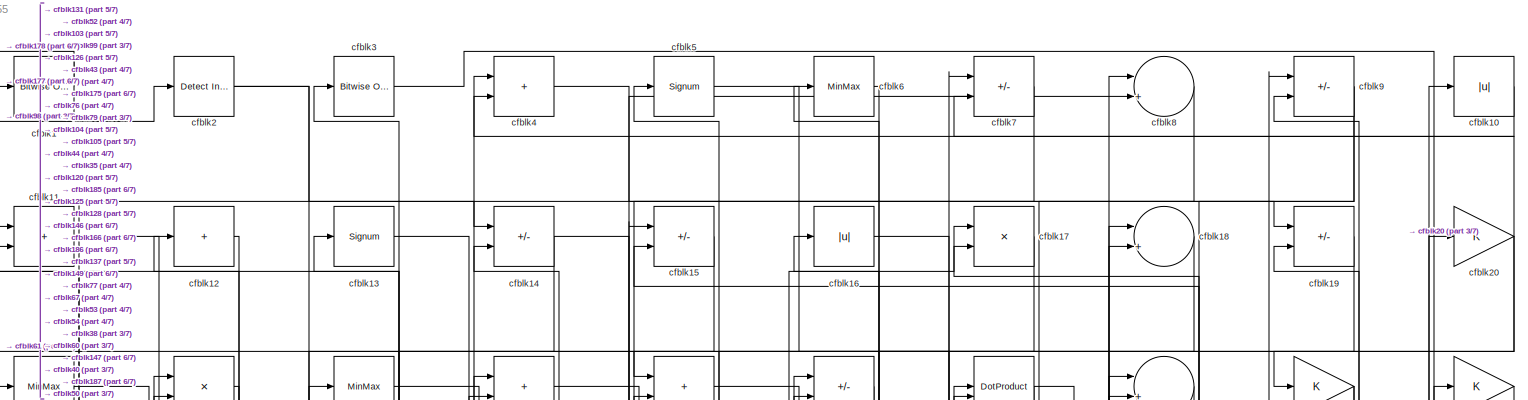
[diagram: root canvas - part 1/7, full width, top band]
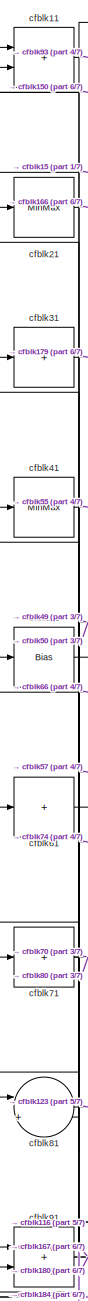
[diagram: root canvas - part 2/7, top left region]
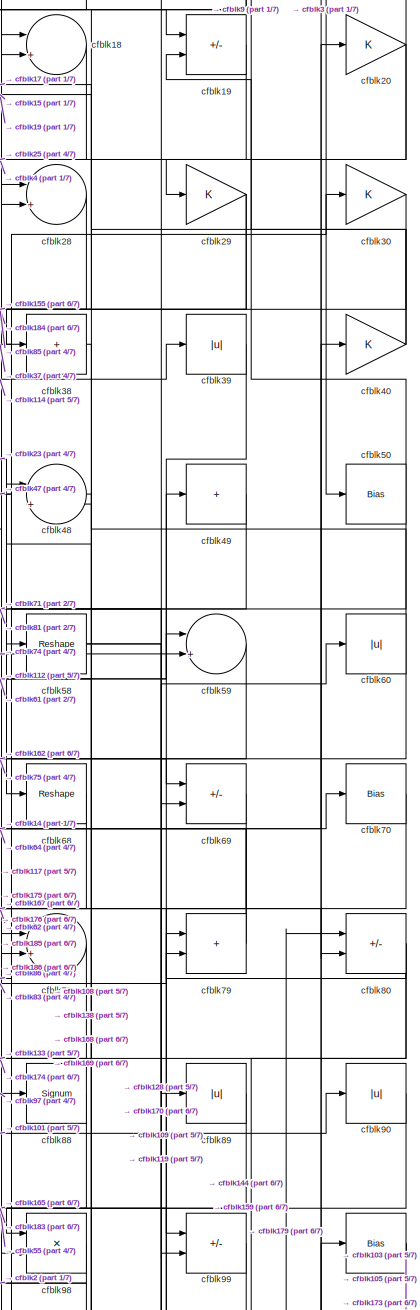
[diagram: root canvas - part 3/7, top right region]
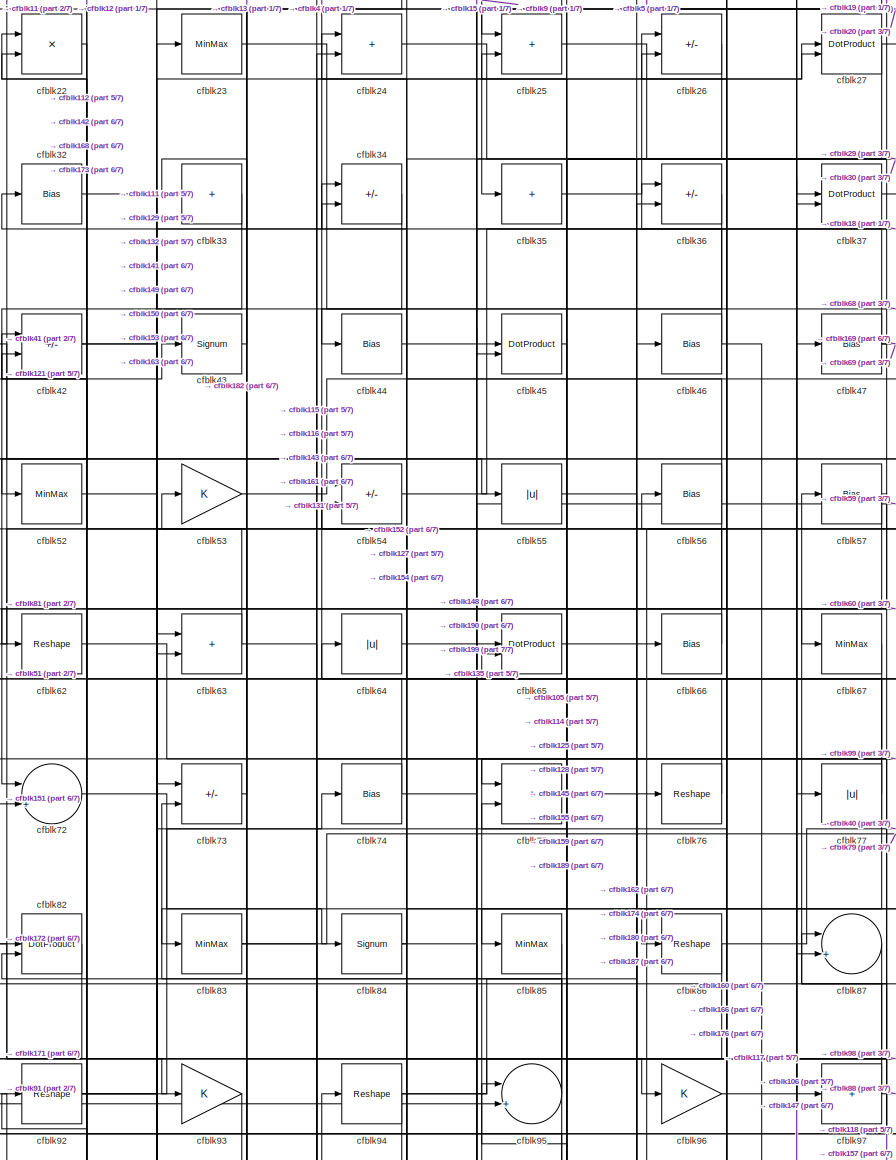
[diagram: root canvas - part 4/7, top center region]
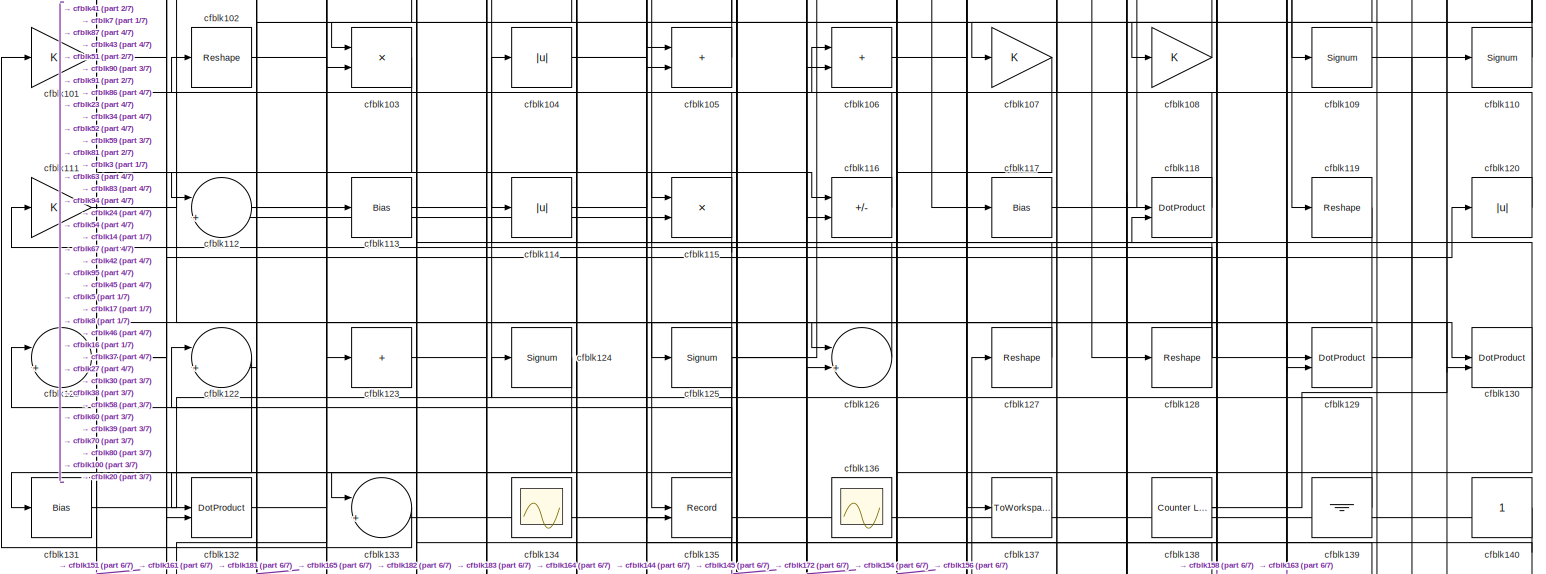
[diagram: root canvas - part 5/7, full width, middle band]
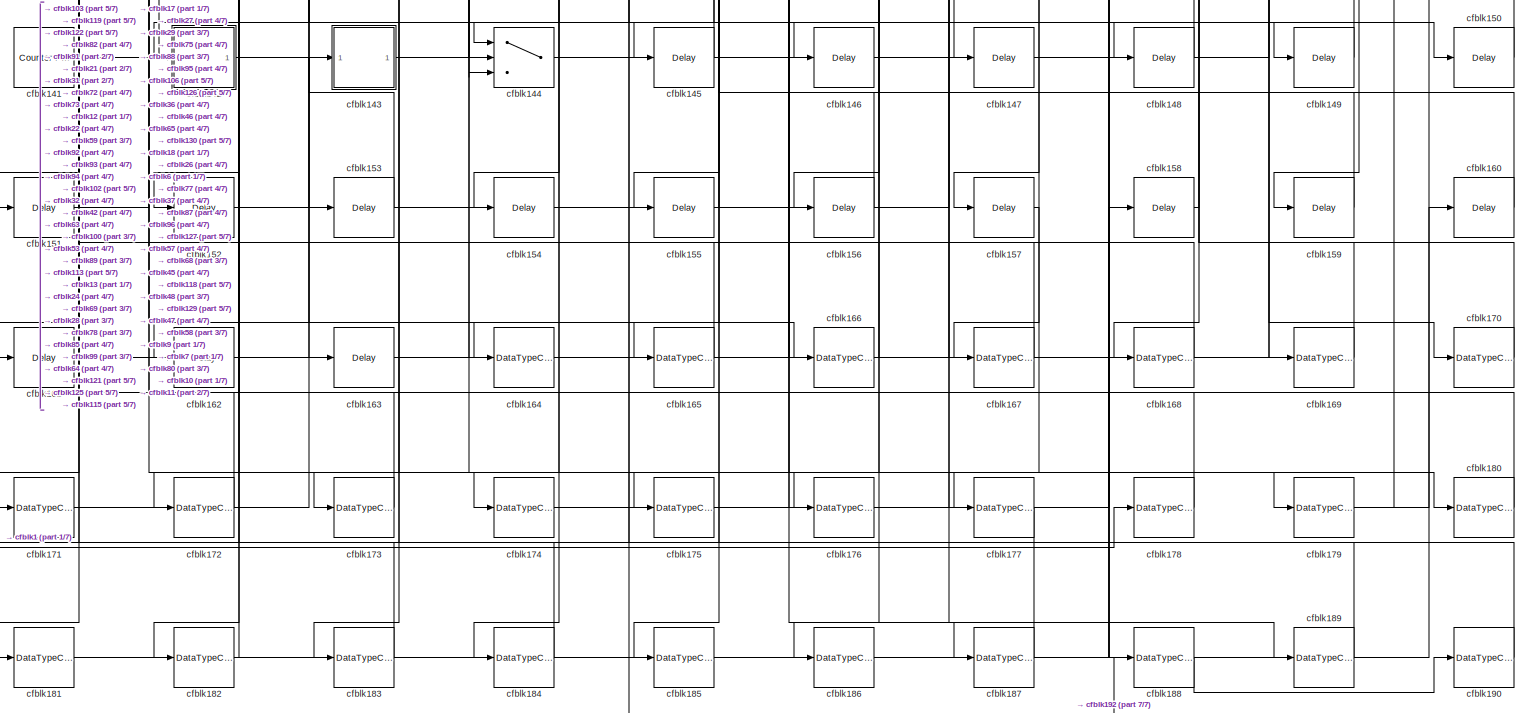
[diagram: root canvas - part 6/7, full width, bottom band]
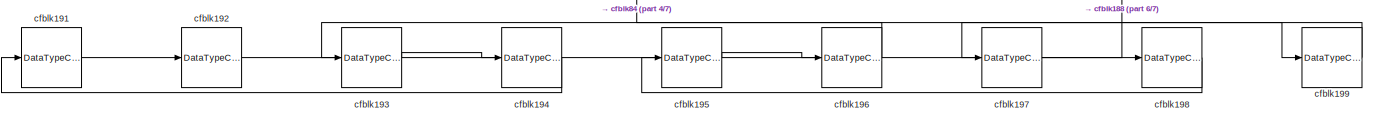
[diagram: root canvas - part 7/7, full width, bottom band]
MODEL slx_f5e3c2ff4255
KIND model
CONFIG AbsTol = auto
CONFIG EnableMultiTasking = off
CONFIG FixedStep = auto
CONFIG MaxStep = auto
CONFIG MinStep = auto
CONFIG RelTol = 1e-3
CONFIG SampleTimeConstraint = Unconstrained
CONFIG SolverName = VariableStepAuto
CONFIG StartTime = 0.0
CONFIG StopTime = 10.0
BLOCK [Reference] cfblk1  REF=simulink/Logic and Bit
Operations/Bitwise
Operator
  LibrarySourceBlock = hdlsllib/Logic and Bit\nOperations/Bitwise\nOperator
  SourceBlock = simulink/Logic and Bit\nOperations/Bitwise\nOperator
  SourceType = Bitwise Operator
BLOCK [Abs] cfblk10
  SaturateOnIntegerOverflow = off
BLOCK [Bias] cfblk100
  Bias = 0.0
  SaturateOnIntegerOverflow = off
BLOCK [Gain] cfblk101
BLOCK [Reshape] cfblk102
BLOCK [Product] cfblk103
  Inputs = */
  RndMeth = Zero
  SaturateOnIntegerOverflow = on
BLOCK [Abs] cfblk104
  SaturateOnIntegerOverflow = off
BLOCK [Sum] cfblk105
  IconShape = rectangular
BLOCK [Sum] cfblk106
  IconShape = rectangular
BLOCK [Gain] cfblk107
BLOCK [Gain] cfblk108
BLOCK [Signum] cfblk109
BLOCK [Sum] cfblk11
  IconShape = rectangular
BLOCK [Signum] cfblk110
BLOCK [Gain] cfblk111
BLOCK [Sum] cfblk112
  Inputs = |++
BLOCK [Bias] cfblk113
  Bias = 0.0
  SaturateOnIntegerOverflow = off
BLOCK [Abs] cfblk114
  SaturateOnIntegerOverflow = off
BLOCK [Product] cfblk115
  Inputs = */
  RndMeth = Zero
  SaturateOnIntegerOverflow = on
BLOCK [Sum] cfblk116
  IconShape = rectangular
  Inputs = +-
BLOCK [Bias] cfblk117
  Bias = 0.0
  SaturateOnIntegerOverflow = off
BLOCK [DotProduct] cfblk118
  OutDataTypeStr = Inherit: Inherit via internal rule
BLOCK [Reshape] cfblk119
BLOCK [Sum] cfblk12
  IconShape = rectangular
  Inputs = +
BLOCK [Abs] cfblk120
  SaturateOnIntegerOverflow = off
BLOCK [Sum] cfblk121
  Inputs = |++
BLOCK [Sum] cfblk122
  Inputs = |++
BLOCK [Sum] cfblk123
  IconShape = rectangular
  Inputs = +
BLOCK [Signum] cfblk124
BLOCK [Signum] cfblk125
BLOCK [Sum] cfblk126
  Inputs = |++
BLOCK [Reshape] cfblk127
BLOCK [Reshape] cfblk128
BLOCK [DotProduct] cfblk129
  OutDataTypeStr = Inherit: Inherit via internal rule
BLOCK [Signum] cfblk13
BLOCK [DotProduct] cfblk130
  OutDataTypeStr = Inherit: Inherit via internal rule
BLOCK [Bias] cfblk131
  Bias = 0.0
  SaturateOnIntegerOverflow = off
BLOCK [DotProduct] cfblk132
  OutDataTypeStr = Inherit: Inherit via internal rule
BLOCK [Sum] cfblk133
  Inputs = |++
BLOCK [Scope] cfblk134
  Floating = on
  NumInputPorts = 1
  ScopeSpecificationString = Simulink.scopes.TimeScopeBlockCfg('CurrentConfiguration', extmgr.ConfigurationSet(extmgr.Configuration('Core','General UI',true,'FigureColor',[0.156862745098039 0.156862745098039 0.156862745098039]),extmgr.Configuration('Core','Source UI',true),extmgr.Configuration('Sources','WiredSimulink',true,'DataLoggingVariableName','ScopeData1','DataLoggingSaveFormat','StructureWithTime','DataLoggingLimitDat...<+2713ch>
BLOCK [Record] cfblk135
  CompatibilityTag = XY
  FileSettingsInternal = {"entries":[{"content":{"excelSettings":{"content":{},"type":"Streamout.ExcelSettings"}},"type":"Streamout.FileSettingStorage","uuid":""}],"packageUris":["http:\/\/schema.mathworks.com\/mf0\/streamout_blocks\/R2020a"],"version":"1.0"}
  Layout = [1 1]
  SignalsInternal = {"entries":[{"content":{"signals":[{"content":{"blockPath":[],"dimensions":[1],"domain":"","lineColor":"#a2142f","plots":[1],"port":1,"signalID":6635,"signalName":"XY Graph:1"},"type":"RecordBlkView.Signal","uuid":""},{"content":{"blockPath":[],"dimensions":[1],"domain":"","lineColor":"#139fff","plots":[1],"port":2,"signalID":6638,"signalName":"XY Graph:2"},"type":"RecordBlkView.Signal","uuid":""}...<+146ch>
  VisualizationBindings = {"xyplotplugin":{"info":[{"series":[{"bindingParametersList":[{"parameter":"X-Axis","signalID":6635,"signalName":"XY Graph:1"},{"parameter":"Y-Axis","signalID":6638,"signalName":"XY Graph:2"}],"seriesID":57611}],"subplotID":1}]}}
  st = -1
BLOCK [Scope] cfblk136
  Floating = on
  NumInputPorts = 1
  ScopeSpecificationString = Simulink.scopes.TimeScopeBlockCfg('CurrentConfiguration', extmgr.ConfigurationSet(extmgr.Configuration('Core','General UI',true,'FigureColor',[0.156862745098039 0.156862745098039 0.156862745098039]),extmgr.Configuration('Core','Source UI',true),extmgr.Configuration('Sources','WiredSimulink',true,'DataLoggingVariableName','ScopeData1','DataLoggingSaveFormat','StructureWithTime','DataLoggingLimitDat...<+2713ch>
BLOCK [ToWorkspace] cfblk137
  MaxDataPoints = inf
  SampleTime = -1
  SaveFormat = Timeseries
  VariableName = simout
BLOCK [Reference] cfblk138  REF=hdlsllib/Sources/Counter
Limited
  SourceBlock = hdlsllib/Sources/Counter\nLimited
  SourceType = Counter Limited
BLOCK [Ground] cfblk139
BLOCK [Sum] cfblk14
  IconShape = rectangular
  Inputs = +-
BLOCK [Constant] cfblk140
  SampleTime = -1
BLOCK [Reference] cfblk141  REF=hdlsllib/Sources/Counter
Free-Running
  SourceBlock = hdlsllib/Sources/Counter\nFree-Running
  SourceType = Counter Free-Running
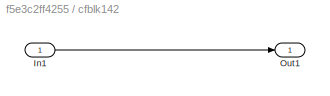
BLOCK [SubSystem] cfblk142
  LibrarySourceBlock = hdlsllib/Ports &\nSubsystems/Subsystem
BLOCK [Inport] cfblk142/In1
BLOCK [Outport] cfblk142/Out1
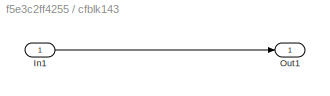
BLOCK [SubSystem] cfblk143
  LibrarySourceBlock = hdlsllib/Ports &\nSubsystems/Subsystem
BLOCK [Inport] cfblk143/In1
BLOCK [Outport] cfblk143/Out1
BLOCK [Switch] cfblk144
  InputSameDT = off
  SaturateOnIntegerOverflow = off
BLOCK [Delay] cfblk145
  InputPortMap = u0
  SampleTime = 1
BLOCK [Delay] cfblk146
  InputPortMap = u0
  SampleTime = 1
BLOCK [Delay] cfblk147
  InputPortMap = u0
  SampleTime = 1
BLOCK [Delay] cfblk148
  InputPortMap = u0
  SampleTime = 1
BLOCK [Delay] cfblk149
  InputPortMap = u0
  SampleTime = 1
BLOCK [Sum] cfblk15
  IconShape = rectangular
  Inputs = +-
BLOCK [Delay] cfblk150
  InputPortMap = u0
  SampleTime = 1
BLOCK [Delay] cfblk151
  InputPortMap = u0
  SampleTime = 1
BLOCK [Delay] cfblk152
  InputPortMap = u0
  SampleTime = 1
BLOCK [Delay] cfblk153
  InputPortMap = u0
  SampleTime = 1
BLOCK [Delay] cfblk154
  InputPortMap = u0
  SampleTime = 1
BLOCK [Delay] cfblk155
  InputPortMap = u0
  SampleTime = 1
BLOCK [Delay] cfblk156
  InputPortMap = u0
  SampleTime = 1
BLOCK [Delay] cfblk157
  InputPortMap = u0
  SampleTime = 1
BLOCK [Delay] cfblk158
  InputPortMap = u0
  SampleTime = 1
BLOCK [Delay] cfblk159
  InputPortMap = u0
  SampleTime = 1
BLOCK [Abs] cfblk16
  SaturateOnIntegerOverflow = off
BLOCK [Delay] cfblk160
  InputPortMap = u0
  SampleTime = 1
BLOCK [Delay] cfblk161
  InputPortMap = u0
  SampleTime = 1
BLOCK [Delay] cfblk162
  InputPortMap = u0
  SampleTime = 1
BLOCK [Delay] cfblk163
  InputPortMap = u0
  SampleTime = 1
BLOCK [DataTypeConversion] cfblk164
  OutDataTypeStr = uint8
  RndMeth = Floor
  SaturateOnIntegerOverflow = off
BLOCK [DataTypeConversion] cfblk165
  OutDataTypeStr = uint8
  RndMeth = Floor
  SaturateOnIntegerOverflow = off
BLOCK [DataTypeConversion] cfblk166
  RndMeth = Floor
  SaturateOnIntegerOverflow = off
BLOCK [DataTypeConversion] cfblk167
  OutDataTypeStr = uint8
  RndMeth = Floor
  SaturateOnIntegerOverflow = off
BLOCK [DataTypeConversion] cfblk168
  OutDataTypeStr = uint8
  RndMeth = Floor
  SaturateOnIntegerOverflow = off
BLOCK [DataTypeConversion] cfblk169
  OutDataTypeStr = uint8
  RndMeth = Floor
  SaturateOnIntegerOverflow = off
BLOCK [Product] cfblk17
  Inputs = */
  RndMeth = Zero
  SaturateOnIntegerOverflow = on
BLOCK [DataTypeConversion] cfblk170
  OutDataTypeStr = uint8
  RndMeth = Floor
  SaturateOnIntegerOverflow = off
BLOCK [DataTypeConversion] cfblk171
  OutDataTypeStr = uint8
  RndMeth = Floor
  SaturateOnIntegerOverflow = off
BLOCK [DataTypeConversion] cfblk172
  OutDataTypeStr = uint8
  RndMeth = Floor
  SaturateOnIntegerOverflow = off
BLOCK [DataTypeConversion] cfblk173
  OutDataTypeStr = uint8
  RndMeth = Floor
  SaturateOnIntegerOverflow = off
BLOCK [DataTypeConversion] cfblk174
  RndMeth = Floor
  SaturateOnIntegerOverflow = off
BLOCK [DataTypeConversion] cfblk175
  OutDataTypeStr = uint8
  RndMeth = Floor
  SaturateOnIntegerOverflow = off
BLOCK [DataTypeConversion] cfblk176
  OutDataTypeStr = uint8
  RndMeth = Floor
  SaturateOnIntegerOverflow = off
BLOCK [DataTypeConversion] cfblk177
  OutDataTypeStr = boolean
  RndMeth = Floor
  SaturateOnIntegerOverflow = off
BLOCK [DataTypeConversion] cfblk178
  OutDataTypeStr = uint8
  RndMeth = Floor
  SaturateOnIntegerOverflow = off
BLOCK [DataTypeConversion] cfblk179
  RndMeth = Floor
  SaturateOnIntegerOverflow = off
BLOCK [Sum] cfblk18
  Inputs = |++
BLOCK [DataTypeConversion] cfblk180
  OutDataTypeStr = uint8
  RndMeth = Floor
  SaturateOnIntegerOverflow = off
BLOCK [DataTypeConversion] cfblk181
  OutDataTypeStr = uint8
  RndMeth = Floor
  SaturateOnIntegerOverflow = off
BLOCK [DataTypeConversion] cfblk182
  OutDataTypeStr = uint8
  RndMeth = Floor
  SaturateOnIntegerOverflow = off
BLOCK [DataTypeConversion] cfblk183
  OutDataTypeStr = uint8
  RndMeth = Floor
  SaturateOnIntegerOverflow = off
BLOCK [DataTypeConversion] cfblk184
  RndMeth = Floor
  SaturateOnIntegerOverflow = off
BLOCK [DataTypeConversion] cfblk185
  OutDataTypeStr = uint8
  RndMeth = Floor
  SaturateOnIntegerOverflow = off
BLOCK [DataTypeConversion] cfblk186
  OutDataTypeStr = uint8
  RndMeth = Floor
  SaturateOnIntegerOverflow = off
BLOCK [DataTypeConversion] cfblk187
  RndMeth = Floor
  SaturateOnIntegerOverflow = off
BLOCK [DataTypeConversion] cfblk188
  OutDataTypeStr = uint8
  RndMeth = Floor
  SaturateOnIntegerOverflow = off
BLOCK [DataTypeConversion] cfblk189
  OutDataTypeStr = uint8
  RndMeth = Floor
  SaturateOnIntegerOverflow = off
BLOCK [Sum] cfblk19
  IconShape = rectangular
  Inputs = +-
BLOCK [DataTypeConversion] cfblk190
  OutDataTypeStr = uint8
  RndMeth = Floor
  SaturateOnIntegerOverflow = off
BLOCK [DataTypeConversion] cfblk191
  OutDataTypeStr = uint8
  RndMeth = Floor
  SaturateOnIntegerOverflow = off
BLOCK [DataTypeConversion] cfblk192
  OutDataTypeStr = uint8
  RndMeth = Floor
  SaturateOnIntegerOverflow = off
BLOCK [DataTypeConversion] cfblk193
  OutDataTypeStr = uint8
  RndMeth = Floor
  SaturateOnIntegerOverflow = off
BLOCK [DataTypeConversion] cfblk194
  OutDataTypeStr = uint8
  RndMeth = Floor
  SaturateOnIntegerOverflow = off
BLOCK [DataTypeConversion] cfblk195
  OutDataTypeStr = uint8
  RndMeth = Floor
  SaturateOnIntegerOverflow = off
BLOCK [DataTypeConversion] cfblk196
  OutDataTypeStr = uint8
  RndMeth = Floor
  SaturateOnIntegerOverflow = off
BLOCK [DataTypeConversion] cfblk197
  OutDataTypeStr = uint8
  RndMeth = Floor
  SaturateOnIntegerOverflow = off
BLOCK [DataTypeConversion] cfblk198
  OutDataTypeStr = uint8
  RndMeth = Floor
  SaturateOnIntegerOverflow = off
BLOCK [DataTypeConversion] cfblk199
  OutDataTypeStr = uint8
  RndMeth = Floor
  SaturateOnIntegerOverflow = off
BLOCK [Reference] cfblk2  REF=simulink/Logic and Bit
Operations/Detect
Increase
  LibrarySourceBlock = hdlsllib/Logic and Bit\nOperations/Detect\nIncrease
  SourceBlock = simulink/Logic and Bit\nOperations/Detect\nIncrease
  SourceType = Detect Increase
BLOCK [Gain] cfblk20
BLOCK [MinMax] cfblk21
BLOCK [Product] cfblk22
  Inputs = */
  RndMeth = Zero
  SaturateOnIntegerOverflow = on
BLOCK [MinMax] cfblk23
BLOCK [Sum] cfblk24
  IconShape = rectangular
BLOCK [Sum] cfblk25
  IconShape = rectangular
BLOCK [Sum] cfblk26
  IconShape = rectangular
  Inputs = +-
BLOCK [DotProduct] cfblk27
  OutDataTypeStr = Inherit: Inherit via internal rule
BLOCK [Sum] cfblk28
  Inputs = |++
BLOCK [Gain] cfblk29
BLOCK [Reference] cfblk3  REF=simulink/Logic and Bit
Operations/Bitwise
Operator
  LibrarySourceBlock = hdlsllib/Logic and Bit\nOperations/Bitwise\nOperator
  SourceBlock = simulink/Logic and Bit\nOperations/Bitwise\nOperator
  SourceType = Bitwise Operator
BLOCK [Gain] cfblk30
BLOCK [Sum] cfblk31
  IconShape = rectangular
  Inputs = +
BLOCK [Bias] cfblk32
  Bias = 0.0
  SaturateOnIntegerOverflow = off
BLOCK [Sum] cfblk33
  IconShape = rectangular
  Inputs = +
BLOCK [Sum] cfblk34
  IconShape = rectangular
  Inputs = +-
BLOCK [Sum] cfblk35
  IconShape = rectangular
  Inputs = +
BLOCK [Sum] cfblk36
  IconShape = rectangular
  Inputs = +-
BLOCK [DotProduct] cfblk37
  OutDataTypeStr = Inherit: Inherit via internal rule
BLOCK [Sum] cfblk38
  IconShape = rectangular
  Inputs = +
BLOCK [Abs] cfblk39
  SaturateOnIntegerOverflow = off
BLOCK [Sum] cfblk4
  IconShape = rectangular
BLOCK [Gain] cfblk40
BLOCK [MinMax] cfblk41
BLOCK [Sum] cfblk42
  IconShape = rectangular
  Inputs = +-
BLOCK [Signum] cfblk43
BLOCK [Bias] cfblk44
  Bias = 0.0
  SaturateOnIntegerOverflow = off
BLOCK [DotProduct] cfblk45
  OutDataTypeStr = Inherit: Inherit via internal rule
BLOCK [Bias] cfblk46
  Bias = 0.0
  SaturateOnIntegerOverflow = off
BLOCK [Bias] cfblk47
  Bias = 0.0
  SaturateOnIntegerOverflow = off
BLOCK [Sum] cfblk48
  Inputs = |++
BLOCK [Sum] cfblk49
  IconShape = rectangular
  Inputs = +
BLOCK [Signum] cfblk5
BLOCK [Bias] cfblk50
  Bias = 0.0
  SaturateOnIntegerOverflow = off
BLOCK [Bias] cfblk51
  Bias = 0.0
  SaturateOnIntegerOverflow = off
BLOCK [MinMax] cfblk52
BLOCK [Gain] cfblk53
BLOCK [Sum] cfblk54
  IconShape = rectangular
  Inputs = +-
BLOCK [Abs] cfblk55
  SaturateOnIntegerOverflow = off
BLOCK [Bias] cfblk56
  Bias = 0.0
  SaturateOnIntegerOverflow = off
BLOCK [Bias] cfblk57
  Bias = 0.0
  SaturateOnIntegerOverflow = off
BLOCK [Reshape] cfblk58
BLOCK [Sum] cfblk59
  Inputs = |++
BLOCK [MinMax] cfblk6
BLOCK [Abs] cfblk60
  SaturateOnIntegerOverflow = off
BLOCK [Sum] cfblk61
  IconShape = rectangular
  Inputs = +
BLOCK [Reshape] cfblk62
BLOCK [Sum] cfblk63
  IconShape = rectangular
BLOCK [Abs] cfblk64
  SaturateOnIntegerOverflow = off
BLOCK [DotProduct] cfblk65
  OutDataTypeStr = Inherit: Inherit via internal rule
BLOCK [Bias] cfblk66
  Bias = 0.0
  SaturateOnIntegerOverflow = off
BLOCK [MinMax] cfblk67
BLOCK [Reshape] cfblk68
BLOCK [Sum] cfblk69
  IconShape = rectangular
  Inputs = +-
BLOCK [Sum] cfblk7
  IconShape = rectangular
  Inputs = +-
BLOCK [Bias] cfblk70
  Bias = 0.0
  SaturateOnIntegerOverflow = off
BLOCK [Sum] cfblk71
  IconShape = rectangular
  Inputs = +
BLOCK [Sum] cfblk72
  Inputs = |++
BLOCK [Sum] cfblk73
  IconShape = rectangular
  Inputs = +-
BLOCK [Bias] cfblk74
  Bias = 0.0
  SaturateOnIntegerOverflow = off
BLOCK [Sum] cfblk75
  IconShape = rectangular
BLOCK [Reshape] cfblk76
BLOCK [Abs] cfblk77
  SaturateOnIntegerOverflow = off
BLOCK [Sum] cfblk78
  Inputs = |++
BLOCK [Sum] cfblk79
  IconShape = rectangular
BLOCK [Sum] cfblk8
  Inputs = |++
BLOCK [Sum] cfblk80
  IconShape = rectangular
  Inputs = +-
BLOCK [Sum] cfblk81
  Inputs = |++
BLOCK [DotProduct] cfblk82
  OutDataTypeStr = Inherit: Inherit via internal rule
BLOCK [MinMax] cfblk83
BLOCK [Signum] cfblk84
BLOCK [MinMax] cfblk85
BLOCK [Reshape] cfblk86
BLOCK [Sum] cfblk87
  Inputs = |++
BLOCK [Signum] cfblk88
BLOCK [Abs] cfblk89
  SaturateOnIntegerOverflow = off
BLOCK [Sum] cfblk9
  IconShape = rectangular
  Inputs = +-
BLOCK [Abs] cfblk90
  SaturateOnIntegerOverflow = off
BLOCK [Sum] cfblk91
  IconShape = rectangular
BLOCK [Reshape] cfblk92
BLOCK [Gain] cfblk93
BLOCK [Reshape] cfblk94
BLOCK [Sum] cfblk95
  Inputs = |++
BLOCK [Gain] cfblk96
BLOCK [Sum] cfblk97
  IconShape = rectangular
  Inputs = +
BLOCK [Product] cfblk98
  Inputs = */
  RndMeth = Zero
  SaturateOnIntegerOverflow = on
BLOCK [Sum] cfblk99
  IconShape = rectangular
  Inputs = +-
NET cfblk100:1 -> cfblk103:1, cfblk105:2, cfblk173:1
LINE cfblk101:1 -> cfblk90:1
LINE cfblk102:1 -> cfblk164:1
LINE cfblk103:1 -> cfblk151:1
NET cfblk104:1 -> cfblk130:2, cfblk8:2
LINE cfblk105:1 -> cfblk42:1
LINE cfblk106:1 -> cfblk37:1
LINE cfblk107:1 -> cfblk126:1
LINE cfblk108:1 -> cfblk91:1
LINE cfblk109:1 -> cfblk20:1
LINE cfblk10:1 -> cfblk7:2
LINE cfblk110:1 -> cfblk107:1
LINE cfblk111:1 -> cfblk23:1
NET cfblk112:1 -> cfblk113:1, cfblk59:1
LINE cfblk113:1 -> cfblk144:2
LINE cfblk114:1 -> cfblk39:1
NET cfblk115:1 -> cfblk112:2, cfblk24:1
LINE cfblk116:1 -> cfblk41:1
LINE cfblk117:1 -> cfblk30:1
LINE cfblk118:1 -> cfblk87:1
LINE cfblk119:1 -> cfblk161:1
LINE cfblk11:1 -> cfblk93:1
LINE cfblk120:1 -> cfblk5:1
NET cfblk121:1 -> cfblk120:1, cfblk43:1
LINE cfblk122:1 -> cfblk181:1
LINE cfblk123:1 -> cfblk130:1
LINE cfblk124:1 -> cfblk132:1
NET cfblk125:1 -> cfblk104:1, cfblk132:2, cfblk172:1, cfblk17:2, cfblk8:1
LINE cfblk126:1 -> cfblk3:1
LINE cfblk127:1 -> cfblk54:1
NET cfblk128:1 -> cfblk111:1, cfblk16:1, cfblk60:1
LINE cfblk129:1 -> cfblk110:1
LINE cfblk12:1 -> cfblk52:1
NET cfblk130:1 -> cfblk106:1, cfblk156:1
LINE cfblk131:1 -> cfblk94:1
LINE cfblk132:1 -> cfblk34:1
LINE cfblk133:1 -> cfblk101:1
NET cfblk138:1 -> cfblk100:1, cfblk58:1
LINE cfblk139:1 -> cfblk124:1
LINE cfblk13:1 -> cfblk175:1
LINE cfblk140:1 -> cfblk133:2
LINE cfblk141:1 -> cfblk73:1
LINE cfblk142/In1:1 -> cfblk142/Out1:1
LINE cfblk142:1 -> cfblk153:1
LINE cfblk143/In1:1 -> cfblk143/Out1:1
LINE cfblk143:1 -> cfblk27:1
LINE cfblk144:1 -> cfblk127:1
LINE cfblk145:1 -> cfblk121:1
LINE cfblk146:1 -> cfblk189:1
LINE cfblk147:1 -> cfblk9:1
LINE cfblk148:1 -> cfblk45:1
LINE cfblk149:1 -> cfblk7:1
NET cfblk14:1 -> cfblk103:2, cfblk105:1
LINE cfblk150:1 -> cfblk11:2
LINE cfblk151:1 -> cfblk72:2
LINE cfblk152:1 -> cfblk87:2
LINE cfblk153:1 -> cfblk63:1
LINE cfblk154:1 -> cfblk126:2
LINE cfblk155:1 -> cfblk95:1
LINE cfblk156:1 -> cfblk115:2
LINE cfblk157:1 -> cfblk177:1
LINE cfblk158:1 -> cfblk118:2
LINE cfblk159:1 -> cfblk75:2
LINE cfblk15:1 -> cfblk61:1
LINE cfblk160:1 -> cfblk26:2
LINE cfblk161:1 -> cfblk24:2
LINE cfblk162:1 -> cfblk36:2
LINE cfblk163:1 -> cfblk129:1
LINE cfblk164:1 -> cfblk106:2
LINE cfblk165:1 -> cfblk102:1
NET cfblk166:1 -> cfblk37:2, cfblk6:1
LINE cfblk167:1 -> cfblk21:1
LINE cfblk168:1 -> cfblk92:1
LINE cfblk169:1 -> cfblk48:1
LINE cfblk16:1 -> cfblk137:1
LINE cfblk170:1 -> cfblk48:2
LINE cfblk171:1 -> cfblk143:1
LINE cfblk172:1 -> cfblk82:1
LINE cfblk173:1 -> cfblk82:2
NET cfblk174:1 -> cfblk46:1, cfblk47:1
LINE cfblk175:1 -> cfblk78:1
LINE cfblk176:1 -> cfblk78:2
LINE cfblk177:1 -> cfblk1:1
LINE cfblk178:1 -> cfblk12:1
NET cfblk179:1 -> cfblk160:1, cfblk80:1
LINE cfblk17:1 -> cfblk185:1
LINE cfblk180:1 -> cfblk31:1
LINE cfblk181:1 -> cfblk118:1
LINE cfblk182:1 -> cfblk122:1
LINE cfblk183:1 -> cfblk122:2
NET cfblk184:1 -> cfblk158:1, cfblk91:2
LINE cfblk185:1 -> cfblk28:1
LINE cfblk186:1 -> cfblk28:2
NET cfblk187:1 -> cfblk10:1, cfblk53:1
LINE cfblk188:1 -> cfblk190:1
LINE cfblk189:1 -> cfblk65:2
LINE cfblk18:1 -> cfblk146:1
LINE cfblk190:1 -> cfblk65:1
LINE cfblk191:1 -> cfblk192:1
LINE cfblk192:1 -> cfblk188:1
LINE cfblk193:1 -> cfblk194:1
LINE cfblk194:1 -> cfblk191:1
LINE cfblk195:1 -> cfblk196:1
LINE cfblk196:1 -> cfblk193:1
LINE cfblk197:1 -> cfblk198:1
LINE cfblk198:1 -> cfblk195:1
LINE cfblk199:1 -> cfblk197:1
LINE cfblk19:1 -> cfblk83:1
LINE cfblk1:1 -> cfblk178:1
NET cfblk20:1 -> cfblk25:1, cfblk29:1, cfblk4:2
LINE cfblk21:1 -> cfblk166:1
LINE cfblk22:1 -> cfblk142:1
LINE cfblk23:1 -> cfblk68:1
LINE cfblk24:1 -> cfblk66:1
LINE cfblk25:1 -> cfblk97:1
LINE cfblk26:1 -> cfblk45:2
NET cfblk27:1 -> cfblk128:1, cfblk145:1
LINE cfblk28:1 -> cfblk184:1
NET cfblk29:1 -> cfblk155:1, cfblk85:1
NET cfblk2:1 -> cfblk14:1, cfblk99:1
LINE cfblk30:1 -> cfblk86:1
LINE cfblk31:1 -> cfblk179:1
LINE cfblk32:1 -> cfblk163:1
LINE cfblk33:1 -> cfblk72:1
LINE cfblk34:1 -> cfblk44:1
LINE cfblk35:1 -> cfblk36:1
LINE cfblk36:1 -> cfblk63:2
LINE cfblk37:1 -> cfblk69:1
LINE cfblk38:1 -> cfblk108:1
LINE cfblk39:1 -> cfblk109:1
LINE cfblk3:1 -> cfblk50:1
NET cfblk40:1 -> cfblk15:2, cfblk19:2
LINE cfblk41:1 -> cfblk55:1
NET cfblk42:1 -> cfblk149:1, cfblk150:1
LINE cfblk43:1 -> cfblk13:1
LINE cfblk44:1 -> cfblk15:1
LINE cfblk45:1 -> cfblk125:1
NET cfblk46:1 -> cfblk117:1, cfblk32:1
NET cfblk47:1 -> cfblk169:1, cfblk26:1, cfblk69:2
LINE cfblk48:1 -> cfblk168:1
LINE cfblk49:1 -> cfblk71:1
LINE cfblk4:1 -> cfblk19:1
NET cfblk50:1 -> cfblk81:2, cfblk9:2
LINE cfblk51:1 -> cfblk116:1
LINE cfblk52:1 -> cfblk129:2
LINE cfblk53:1 -> cfblk18:2
LINE cfblk54:1 -> cfblk18:1
LINE cfblk55:1 -> cfblk98:1
NET cfblk56:1 -> cfblk34:2, cfblk62:1
NET cfblk57:1 -> cfblk157:1, cfblk81:1
NET cfblk58:1 -> cfblk170:1, cfblk89:1
LINE cfblk59:1 -> cfblk162:1
LINE cfblk5:1 -> cfblk77:1
NET cfblk60:1 -> cfblk17:1, cfblk75:1
LINE cfblk61:1 -> cfblk49:1
LINE cfblk62:1 -> cfblk99:2
NET cfblk63:1 -> cfblk115:1, cfblk22:2
LINE cfblk64:1 -> cfblk148:1
LINE cfblk65:1 -> cfblk187:1
LINE cfblk66:1 -> cfblk11:1
LINE cfblk67:1 -> cfblk135:1
LINE cfblk68:1 -> cfblk167:1
LINE cfblk69:1 -> cfblk144:3
LINE cfblk6:1 -> cfblk186:1
LINE cfblk70:1 -> cfblk119:1
NET cfblk71:1 -> cfblk70:1, cfblk80:2
LINE cfblk72:1 -> cfblk84:1
LINE cfblk73:1 -> cfblk33:1
NET cfblk74:1 -> cfblk51:1, cfblk59:2
LINE cfblk75:1 -> cfblk180:1
LINE cfblk76:1 -> cfblk4:1
NET cfblk77:1 -> cfblk176:1, cfblk25:2, cfblk42:2
LINE cfblk78:1 -> cfblk174:1
NET cfblk79:1 -> cfblk14:2, cfblk64:1
LINE cfblk7:1 -> cfblk131:1
NET cfblk80:1 -> cfblk133:1, cfblk159:1, cfblk79:2
LINE cfblk81:1 -> cfblk123:1
LINE cfblk82:1 -> cfblk171:1
NET cfblk83:1 -> cfblk116:2, cfblk79:1
NET cfblk84:1 -> cfblk199:1, cfblk54:2
LINE cfblk85:1 -> cfblk154:1
NET cfblk86:1 -> cfblk112:1, cfblk40:1
LINE cfblk87:1 -> cfblk121:2
LINE cfblk88:1 -> cfblk165:1
LINE cfblk89:1 -> cfblk183:1
LINE cfblk8:1 -> cfblk67:1
LINE cfblk90:1 -> cfblk98:2
NET cfblk91:1 -> cfblk135:2, cfblk95:2
NET cfblk92:1 -> cfblk27:2, cfblk56:1, cfblk74:1
LINE cfblk93:1 -> cfblk182:1
NET cfblk94:1 -> cfblk152:1, cfblk76:1, cfblk96:1
NET cfblk95:1 -> cfblk114:1, cfblk22:1, cfblk73:2
LINE cfblk96:1 -> cfblk147:1
NET cfblk97:1 -> cfblk57:1, cfblk88:1
LINE cfblk98:1 -> cfblk2:1
LINE cfblk99:1 -> cfblk144:1
NET cfblk9:1 -> cfblk35:1, cfblk38:1
note: NET lines group one-source signal fan-out (src -> all destinations, sorted); 1:1 wires keep LINE
